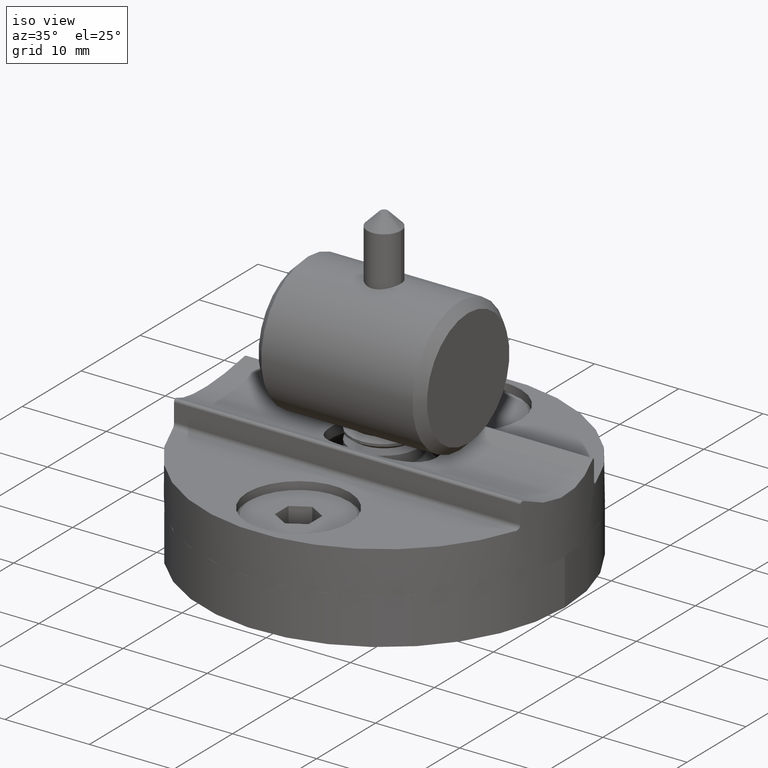
[diagram: clean part render]
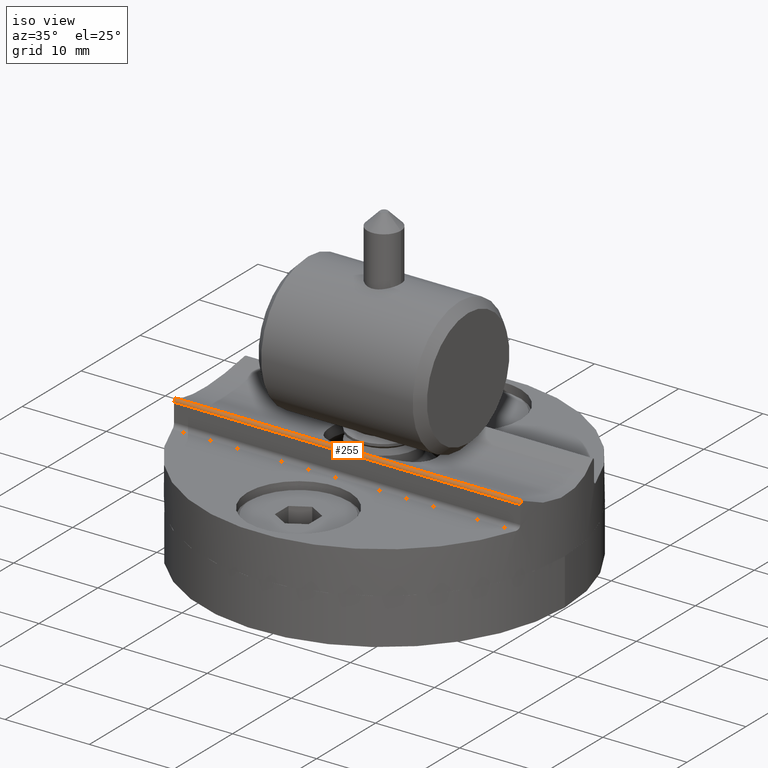
[diagram: same view with one face highlighted and labeled with its STEP entity id]
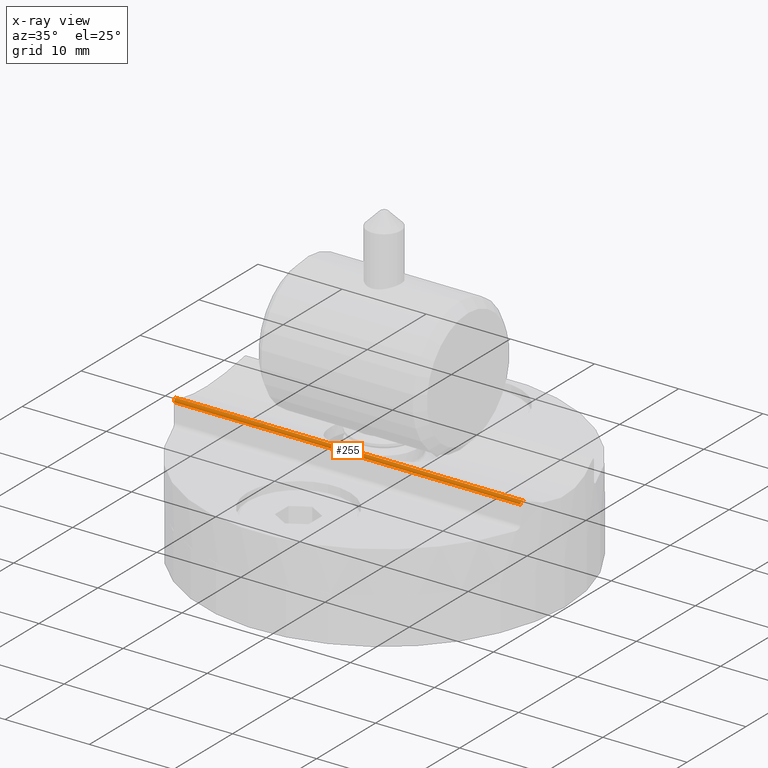
[diagram: x-ray of the same camera — body ghosted, the highlighted face saturated]
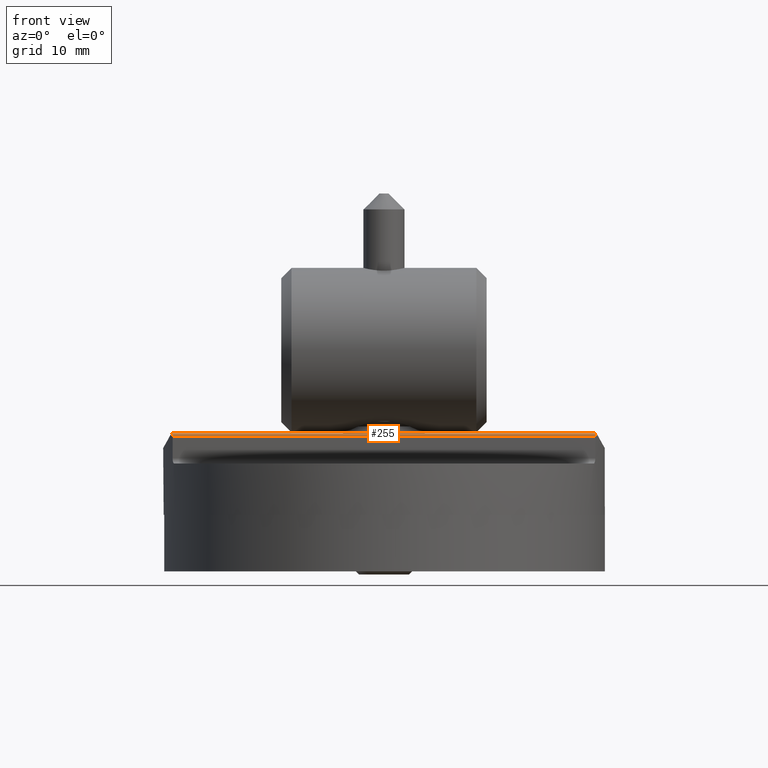
[diagram: same view with one face highlighted and labeled with its STEP entity id]
A machine part, iso view. The second image highlights one B-rep face of the part: STEP entity #255.
The next image is the same camera in x-ray: the body ghosted, the highlighted face saturated — about 0% of this face is hidden behind the body in this view.
A second angle (front view) of the same face is appended — the face is thin or edge-on in the first view.
In plain terms, the highlighted cylindrical surface (edge-blend (fillet) strip) has radius 0.3 mm, axis along (1, 0, 0).
Its self-contained STEP definition (entity closure, byte-faithful):
#255 = ADVANCED_FACE ( 'NONE', ( #17189 ), #6894, .T. ) ;
#1582 = CARTESIAN_POINT ( 'NONE',  ( 20.57152157717070651, -6.249999999999999112, 7.666973043356861695 ) ) ;
#1642 = CARTESIAN_POINT ( 'NONE',  ( -30.00000000000000000, -5.810546874999999112, 7.932590862653184693 ) ) ;
#2731 = EDGE_CURVE ( 'NONE', #17966, #18522, #5471, .T. ) ;
#2928 = CARTESIAN_POINT ( 'NONE',  ( -20.64198874175370335, -6.013877691625887145, 7.977351747848785202 ) ) ;
#4031 = B_SPLINE_CURVE_WITH_KNOTS ( 'NONE', 3,
 ( #15972, #19532, #12484, #18159, #7503, #1582 ),
 .UNSPECIFIED., .F., .F.,
 ( 4, 2, 4 ),
 ( 8.673617379884034509E-19, 0.0003142624238118461259, 0.0006285248476236913844 ),
 .UNSPECIFIED. ) ;
#4039 = CARTESIAN_POINT ( 'NONE',  ( -20.57152157717070651, -6.249999999999999112, 7.666973043356861695 ) ) ;
#4645 = CARTESIAN_POINT ( 'NONE',  ( -20.57152157717070651, -6.249999999999999112, 7.773284809162592346 ) ) ;
#4996 = AXIS2_PLACEMENT_3D ( 'NONE', #19606, #5626, #9195 ) ;
#5471 = LINE ( 'NONE', #1642, #21326 ) ;
#5626 = DIRECTION ( 'NONE',  ( 1.000000000000000000, 0.000000000000000000, 0.000000000000000000 ) ) ;
#6709 = EDGE_CURVE ( 'NONE', #17122, #20574, #17391, .T. ) ;
#6894 = CYLINDRICAL_SURFACE ( 'NONE', #4996, 0.2999999999999999334 ) ;
#7503 = CARTESIAN_POINT ( 'NONE',  ( 20.57152157717071006, -6.250000000000000000, 7.773364970434486487 ) ) ;
#8215 = CARTESIAN_POINT ( 'NONE',  ( -20.57152157717070651, -6.249999999999999112, 7.666973043356861695 ) ) ;
#9195 = DIRECTION ( 'NONE',  ( 0.000000000000000000, 0.000000000000000000, -1.000000000000000000 ) ) ;
#10438 = EDGE_CURVE ( 'NONE', #18522, #17122, #4031, .T. ) ;
#11270 = EDGE_CURVE ( 'NONE', #20574, #17966, #21740, .T. ) ;
#11387 = DIRECTION ( 'NONE',  ( -1.000000000000000000, -0.000000000000000000, -0.000000000000000000 ) ) ;
#12037 = CARTESIAN_POINT ( 'NONE',  ( 20.57152157717070651, -6.249999999999999112, 7.666973043356861695 ) ) ;
#12484 = CARTESIAN_POINT ( 'NONE',  ( 20.64209100525787477, -6.013532082292808667, 7.977551734518658400 ) ) ;
#12666 = VECTOR ( 'NONE', #11387, 1000.000000000000000 ) ;
#14977 = CARTESIAN_POINT ( 'NONE',  ( -30.00000000000000000, -6.249999999999999112, 7.666973043356861695 ) ) ;
#15074 = ORIENTED_EDGE ( 'NONE', *, *, #2731, .F. ) ;
#15227 = CARTESIAN_POINT ( 'NONE',  ( -20.67432157203074894, -5.901814436579278400, 7.980507627827594597 ) ) ;
#15972 = CARTESIAN_POINT ( 'NONE',  ( 20.69994070072249315, -5.810546874999998224, 7.932590862653182917 ) ) ;
#17122 = VERTEX_POINT ( 'NONE', #12037 ) ;
#17167 = CARTESIAN_POINT ( 'NONE',  ( -20.69994070072247894, -5.810546875000045297, 7.932590862653193575 ) ) ;
#17189 = FACE_OUTER_BOUND ( 'NONE', #18819, .T. ) ;
#17391 = LINE ( 'NONE', #14977, #12666 ) ;
#17453 = CARTESIAN_POINT ( 'NONE',  ( -20.69994070072247894, -5.810546875000045297, 7.932590862653193575 ) ) ;
#17733 = CARTESIAN_POINT ( 'NONE',  ( 20.69994070072249315, -5.810546874999998224, 7.932590862653182917 ) ) ;
#17966 = VERTEX_POINT ( 'NONE', #17453 ) ;
#18159 = CARTESIAN_POINT ( 'NONE',  ( 20.58979266153637866, -6.190228374547688261, 7.873820274294117461 ) ) ;
#18522 = VERTEX_POINT ( 'NONE', #17733 ) ;
#18819 = EDGE_LOOP ( 'NONE', ( #20988, #19171, #20214, #15074 ) ) ;
#19171 = ORIENTED_EDGE ( 'NONE', *, *, #6709, .F. ) ;
#19532 = CARTESIAN_POINT ( 'NONE',  ( 20.67430449949218030, -5.901875257108486927, 7.980539559468645017 ) ) ;
#19606 = CARTESIAN_POINT ( 'NONE',  ( -30.00000000000000000, -5.949999999999999289, 7.666973043356861695 ) ) ;
#20214 = ORIENTED_EDGE ( 'NONE', *, *, #10438, .F. ) ;
#20574 = VERTEX_POINT ( 'NONE', #4039 ) ;
#20789 = CARTESIAN_POINT ( 'NONE',  ( -20.58989116295294153, -6.189895475876366682, 7.874012798823267545 ) ) ;
#20988 = ORIENTED_EDGE ( 'NONE', *, *, #11270, .F. ) ;
#21326 = VECTOR ( 'NONE', #22819, 1000.000000000000000 ) ;
#21740 = B_SPLINE_CURVE_WITH_KNOTS ( 'NONE', 3,
 ( #8215, #4645, #20789, #2928, #15227, #17167 ),
 .UNSPECIFIED., .F., .F.,
 ( 4, 2, 4 ),
 ( 0.000000000000000000, 0.0003143202728853457619, 0.0006286405457706915239 ),
 .UNSPECIFIED. ) ;
#22819 = DIRECTION ( 'NONE',  ( 1.000000000000000000, 0.000000000000000000, 0.000000000000000000 ) ) ;